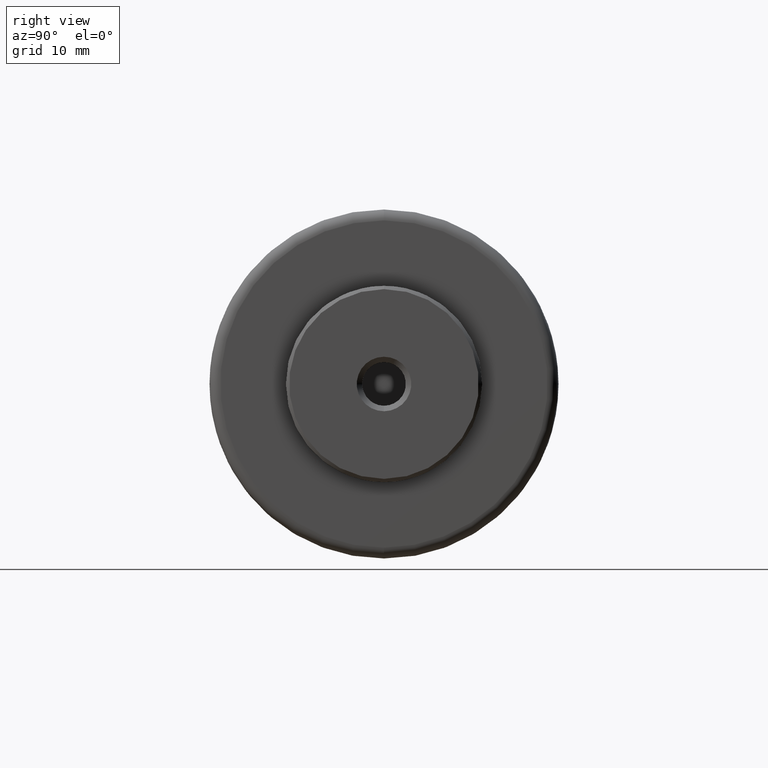
[diagram: clean part render]
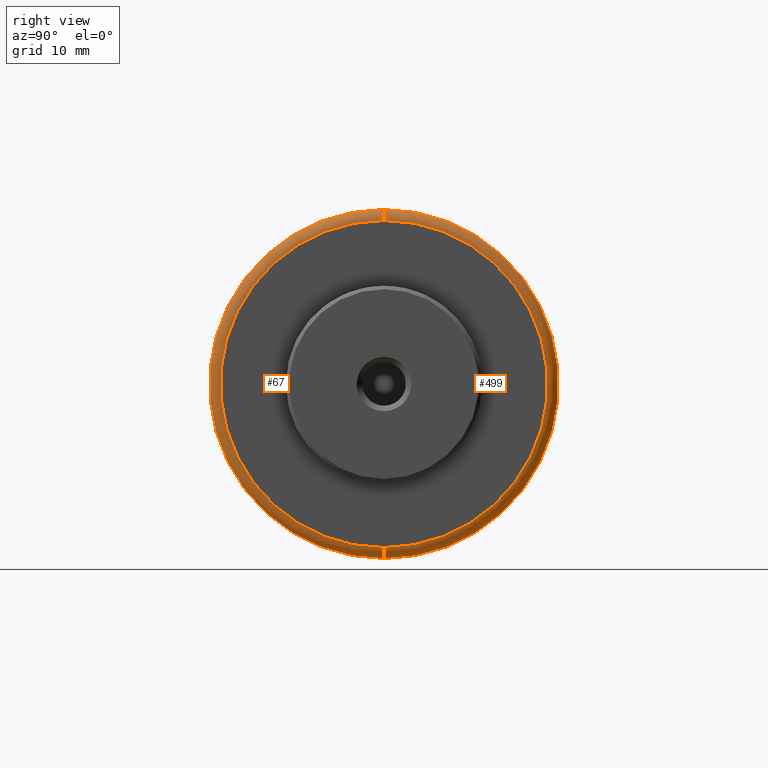
[diagram: same view with one multi-face feature highlighted, each face labeled with its STEP entity id]
A machine part, right view. The highlighted faces form ONE feature: a constant-radius fillet chain: 2 tangent blend faces with common blend radius 1 mm. The faces share edges in the B-rep.
Their STEP definitions:
[1] entity #67 (Torus):
#67 = ADVANCED_FACE ( 'NONE', ( #859 ), #1211, .T. ) ;
#69 = DIRECTION ( 'NONE',  ( 1.000000000000000000, -0.0000000000000000000, 0.0000000000000000000 ) ) ;
#77 = CARTESIAN_POINT ( 'NONE',  ( 46.00000000000000000, 0.0000000000000000000, 0.0000000000000000000 ) ) ;
#80 = DIRECTION ( 'NONE',  ( 0.0000000000000000000, 0.0000000000000000000, -1.000000000000000000 ) ) ;
#97 = CARTESIAN_POINT ( 'NONE',  ( 45.00000000000000000, 1.959434878635765100E-015, -16.00000000000000000 ) ) ;
#111 = AXIS2_PLACEMENT_3D ( 'NONE', #644, #1180, #604 ) ;
#129 = ORIENTED_EDGE ( 'NONE', *, *, #1021, .F. ) ;
#164 = VERTEX_POINT ( 'NONE', #1225 ) ;
#220 = DIRECTION ( 'NONE',  ( 0.0000000000000000000, 0.0000000000000000000, -1.000000000000000000 ) ) ;
#269 = VERTEX_POINT ( 'NONE', #97 ) ;
#291 = EDGE_CURVE ( 'NONE', #791, #771, #324, .T. ) ;
#324 = CIRCLE ( 'NONE', #842, 1.000000000000000900 ) ;
#367 = AXIS2_PLACEMENT_3D ( 'NONE', #77, #69, #80 ) ;
#397 = DIRECTION ( 'NONE',  ( 0.0000000000000000000, 1.224646799147353500E-016, 1.000000000000000000 ) ) ;
#426 = CARTESIAN_POINT ( 'NONE',  ( 45.00000000000000000, 0.0000000000000000000, 16.00000000000000000 ) ) ;
#471 = CIRCLE ( 'NONE', #367, 15.00000000000000000 ) ;
#533 = CARTESIAN_POINT ( 'NONE',  ( 46.00000000000000000, 1.898202538678397200E-015, 15.00000000000000000 ) ) ;
#573 = ORIENTED_EDGE ( 'NONE', *, *, #1107, .T. ) ;
#578 = ORIENTED_EDGE ( 'NONE', *, *, #656, .F. ) ;
#587 = ORIENTED_EDGE ( 'NONE', *, *, #291, .F. ) ;
#604 = DIRECTION ( 'NONE',  ( 0.0000000000000000000, 0.0000000000000000000, -1.000000000000000000 ) ) ;
#644 = CARTESIAN_POINT ( 'NONE',  ( 45.00000000000000000, 0.0000000000000000000, -15.00000000000000000 ) ) ;
#656 = EDGE_CURVE ( 'NONE', #771, #164, #471, .T. ) ;
#687 = CIRCLE ( 'NONE', #912, 16.00000000000000000 ) ;
#721 = EDGE_LOOP ( 'NONE', ( #587, #129, #573, #578 ) ) ;
#741 = AXIS2_PLACEMENT_3D ( 'NONE', #1048, #1238, #1157 ) ;
#771 = VERTEX_POINT ( 'NONE', #533 ) ;
#779 = CARTESIAN_POINT ( 'NONE',  ( 45.00000000000000000, 1.836970198721029600E-015, 15.00000000000000000 ) ) ;
#791 = VERTEX_POINT ( 'NONE', #426 ) ;
#842 = AXIS2_PLACEMENT_3D ( 'NONE', #779, #894, #397 ) ;
#859 = FACE_OUTER_BOUND ( 'NONE', #721, .T. ) ;
#894 = DIRECTION ( 'NONE',  ( 0.0000000000000000000, 1.000000000000000000, -1.224646799147353200E-016 ) ) ;
#912 = AXIS2_PLACEMENT_3D ( 'NONE', #956, #1104, #220 ) ;
#956 = CARTESIAN_POINT ( 'NONE',  ( 45.00000000000000000, 0.0000000000000000000, 0.0000000000000000000 ) ) ;
#981 = CIRCLE ( 'NONE', #111, 1.000000000000000900 ) ;
#1021 = EDGE_CURVE ( 'NONE', #269, #791, #687, .T. ) ;
#1048 = CARTESIAN_POINT ( 'NONE',  ( 45.00000000000000000, 0.0000000000000000000, 0.0000000000000000000 ) ) ;
#1104 = DIRECTION ( 'NONE',  ( -1.000000000000000000, 0.0000000000000000000, -0.0000000000000000000 ) ) ;
#1107 = EDGE_CURVE ( 'NONE', #269, #164, #981, .T. ) ;
#1157 = DIRECTION ( 'NONE',  ( 0.0000000000000000000, 0.0000000000000000000, -1.000000000000000000 ) ) ;
#1180 = DIRECTION ( 'NONE',  ( 0.0000000000000000000, -1.000000000000000000, -0.0000000000000000000 ) ) ;
#1211 = TOROIDAL_SURFACE ( 'NONE', #741, 15.00000000000000000, 1.000000000000000000 ) ;
#1225 = CARTESIAN_POINT ( 'NONE',  ( 46.00000000000000000, 0.0000000000000000000, -15.00000000000000000 ) ) ;
#1238 = DIRECTION ( 'NONE',  ( 1.000000000000000000, -0.0000000000000000000, 0.0000000000000000000 ) ) ;
[2] entity #499 (Torus):
#38 = CARTESIAN_POINT ( 'NONE',  ( 46.00000000000000000, 0.0000000000000000000, 0.0000000000000000000 ) ) ;
#52 = DIRECTION ( 'NONE',  ( 1.000000000000000000, -0.0000000000000000000, 0.0000000000000000000 ) ) ;
#58 = DIRECTION ( 'NONE',  ( 0.0000000000000000000, 0.0000000000000000000, -1.000000000000000000 ) ) ;
#97 = CARTESIAN_POINT ( 'NONE',  ( 45.00000000000000000, 1.959434878635765100E-015, -16.00000000000000000 ) ) ;
#111 = AXIS2_PLACEMENT_3D ( 'NONE', #644, #1180, #604 ) ;
#164 = VERTEX_POINT ( 'NONE', #1225 ) ;
#230 = TOROIDAL_SURFACE ( 'NONE', #438, 15.00000000000000000, 1.000000000000000000 ) ;
#248 = DIRECTION ( 'NONE',  ( 0.0000000000000000000, 0.0000000000000000000, -1.000000000000000000 ) ) ;
#251 = CARTESIAN_POINT ( 'NONE',  ( 45.00000000000000000, 0.0000000000000000000, 0.0000000000000000000 ) ) ;
#263 = DIRECTION ( 'NONE',  ( 1.000000000000000000, -0.0000000000000000000, 0.0000000000000000000 ) ) ;
#269 = VERTEX_POINT ( 'NONE', #97 ) ;
#291 = EDGE_CURVE ( 'NONE', #791, #771, #324, .T. ) ;
#303 = AXIS2_PLACEMENT_3D ( 'NONE', #38, #52, #58 ) ;
#324 = CIRCLE ( 'NONE', #842, 1.000000000000000900 ) ;
#337 = DIRECTION ( 'NONE',  ( -1.000000000000000000, 0.0000000000000000000, -0.0000000000000000000 ) ) ;
#374 = CIRCLE ( 'NONE', #303, 15.00000000000000000 ) ;
#397 = DIRECTION ( 'NONE',  ( 0.0000000000000000000, 1.224646799147353500E-016, 1.000000000000000000 ) ) ;
#426 = CARTESIAN_POINT ( 'NONE',  ( 45.00000000000000000, 0.0000000000000000000, 16.00000000000000000 ) ) ;
#435 = AXIS2_PLACEMENT_3D ( 'NONE', #814, #337, #248 ) ;
#438 = AXIS2_PLACEMENT_3D ( 'NONE', #251, #263, #829 ) ;
#490 = FACE_OUTER_BOUND ( 'NONE', #864, .T. ) ;
#499 = ADVANCED_FACE ( 'NONE', ( #490 ), #230, .T. ) ;
#533 = CARTESIAN_POINT ( 'NONE',  ( 46.00000000000000000, 1.898202538678397200E-015, 15.00000000000000000 ) ) ;
#604 = DIRECTION ( 'NONE',  ( 0.0000000000000000000, 0.0000000000000000000, -1.000000000000000000 ) ) ;
#641 = EDGE_CURVE ( 'NONE', #164, #771, #374, .T. ) ;
#644 = CARTESIAN_POINT ( 'NONE',  ( 45.00000000000000000, 0.0000000000000000000, -15.00000000000000000 ) ) ;
#665 = EDGE_CURVE ( 'NONE', #791, #269, #1134, .T. ) ;
#697 = ORIENTED_EDGE ( 'NONE', *, *, #291, .T. ) ;
#771 = VERTEX_POINT ( 'NONE', #533 ) ;
#779 = CARTESIAN_POINT ( 'NONE',  ( 45.00000000000000000, 1.836970198721029600E-015, 15.00000000000000000 ) ) ;
#791 = VERTEX_POINT ( 'NONE', #426 ) ;
#814 = CARTESIAN_POINT ( 'NONE',  ( 45.00000000000000000, 0.0000000000000000000, 0.0000000000000000000 ) ) ;
#829 = DIRECTION ( 'NONE',  ( 0.0000000000000000000, 0.0000000000000000000, -1.000000000000000000 ) ) ;
#842 = AXIS2_PLACEMENT_3D ( 'NONE', #779, #894, #397 ) ;
#864 = EDGE_LOOP ( 'NONE', ( #1202, #697, #1097, #1129 ) ) ;
#894 = DIRECTION ( 'NONE',  ( 0.0000000000000000000, 1.000000000000000000, -1.224646799147353200E-016 ) ) ;
#981 = CIRCLE ( 'NONE', #111, 1.000000000000000900 ) ;
#1097 = ORIENTED_EDGE ( 'NONE', *, *, #641, .F. ) ;
#1107 = EDGE_CURVE ( 'NONE', #269, #164, #981, .T. ) ;
#1129 = ORIENTED_EDGE ( 'NONE', *, *, #1107, .F. ) ;
#1134 = CIRCLE ( 'NONE', #435, 16.00000000000000000 ) ;
#1180 = DIRECTION ( 'NONE',  ( 0.0000000000000000000, -1.000000000000000000, -0.0000000000000000000 ) ) ;
#1202 = ORIENTED_EDGE ( 'NONE', *, *, #665, .F. ) ;
#1225 = CARTESIAN_POINT ( 'NONE',  ( 46.00000000000000000, 0.0000000000000000000, -15.00000000000000000 ) ) ;